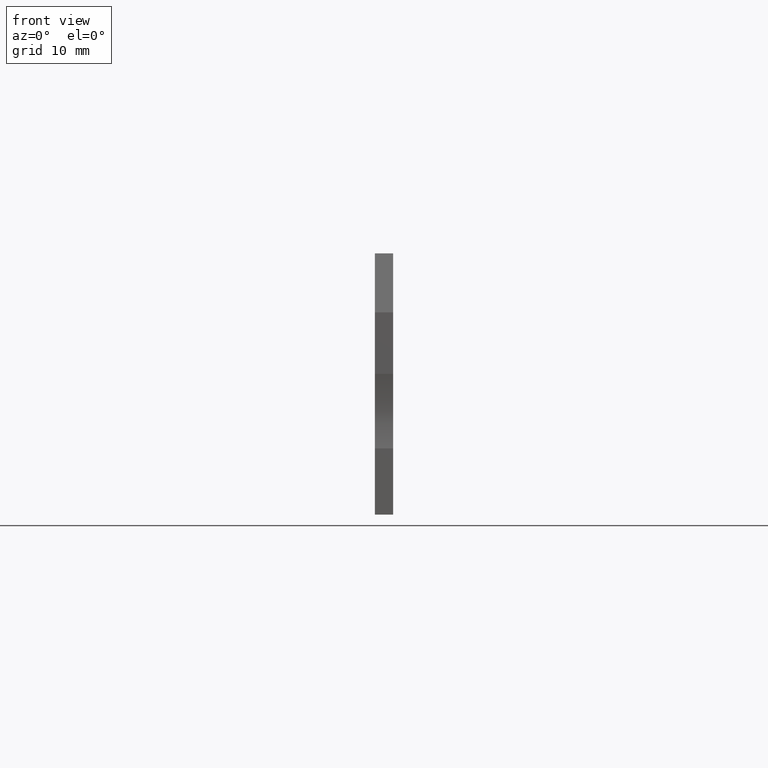
[diagram: clean part render]
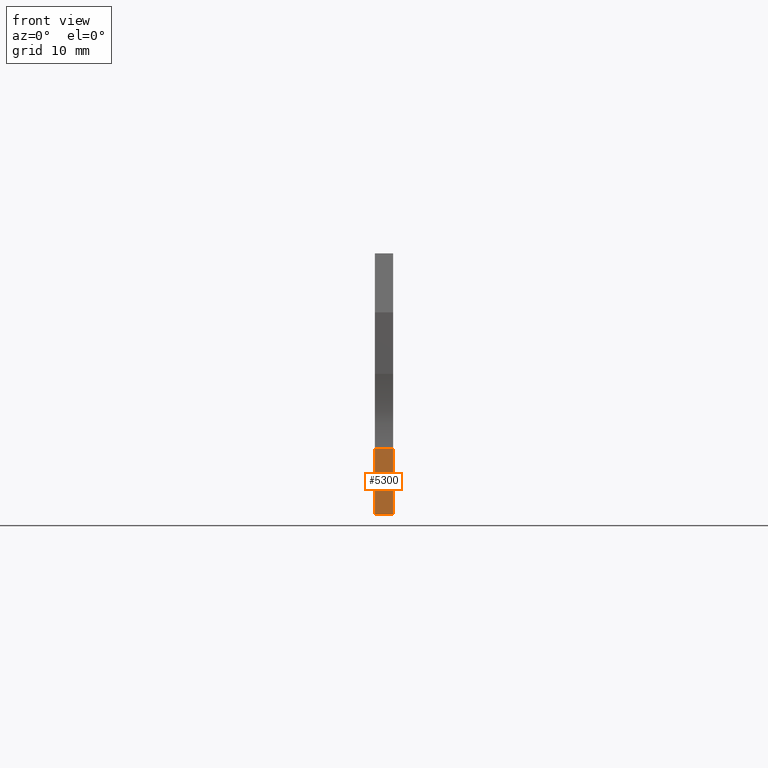
[diagram: same view with one face highlighted and labeled with its STEP entity id]
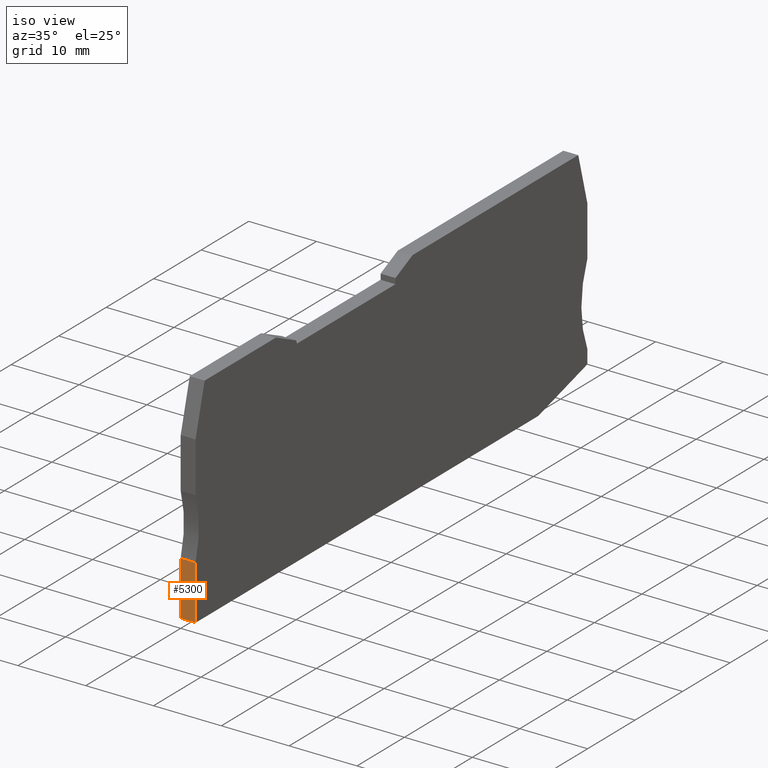
[diagram: same view with one face highlighted and labeled with its STEP entity id]
A machine part, front view. The second image highlights one B-rep face of the part: STEP entity #5300.
A second angle (iso view) of the same face is appended — the face is thin or edge-on in the first view.
In plain terms, the highlighted planar face has unit normal (0, -1, 0).
Its self-contained STEP definition (entity closure, byte-faithful):
#100=CARTESIAN_POINT('',(8.72968082603374,-38.2000000000045,
-2.22044604925031E-14));
#110=VERTEX_POINT('',#100);
#1340=CARTESIAN_POINT('',(8.72968082603374,-30.2000000000147,
-2.22044604925031E-14));
#1350=VERTEX_POINT('',#1340);
#1380=CARTESIAN_POINT('',(8.72968082603374,-33.886127,
-2.22044604925031E-14));
#1390=DIRECTION('',(0.,-1.,0.));
#1400=VECTOR('',#1390,1.);
#1410=LINE('',#1380,#1400);
#1420=EDGE_CURVE('',#1350,#110,#1410,.T.);
#1590=CARTESIAN_POINT('',(8.72968082603374,-33.886127,2.19999999999998))
;
#1600=DIRECTION('',(0.,-1.,0.));
#1610=VECTOR('',#1600,1.);
#1620=LINE('',#1590,#1610);
#1630=CARTESIAN_POINT('',(8.72968082603374,-30.2000000000147,
2.19999999999998));
#1640=VERTEX_POINT('',#1630);
#1650=CARTESIAN_POINT('',(8.72968082603374,-38.2000000000045,
2.19999999999998));
#1660=VERTEX_POINT('',#1650);
#1670=EDGE_CURVE('',#1640,#1660,#1620,.T.);
#5090=CARTESIAN_POINT('',(8.72968082603374,-30.4972542058063,
2.19999999999998));
#5100=DIRECTION('',(-1.,0.,0.));
#5110=DIRECTION('',(0.,1.,0.));
#5120=AXIS2_PLACEMENT_3D('',#5090,#5100,#5110);
#5130=PLANE('',#5120);
#5140=CARTESIAN_POINT('',(8.72968082603374,-38.2000000000045,
-2.1316282072803E-14));
#5150=DIRECTION('',(0.,0.,1.));
#5160=VECTOR('',#5150,1.);
#5170=LINE('',#5140,#5160);
#5180=EDGE_CURVE('',#110,#1660,#5170,.T.);
#5190=ORIENTED_EDGE('',*,*,#5180,.T.);
#5200=ORIENTED_EDGE('',*,*,#1420,.T.);
#5210=CARTESIAN_POINT('',(8.72968082603374,-30.2000000000147,
2.19999999999998));
#5220=DIRECTION('',(0.,0.,1.));
#5230=VECTOR('',#5220,1.);
#5240=LINE('',#5210,#5230);
#5250=EDGE_CURVE('',#1350,#1640,#5240,.T.);
#5260=ORIENTED_EDGE('',*,*,#5250,.F.);
#5270=ORIENTED_EDGE('',*,*,#1670,.F.);
#5280=EDGE_LOOP('',(#5270,#5260,#5200,#5190));
#5290=FACE_OUTER_BOUND('',#5280,.T.);
#5300=ADVANCED_FACE('',(#5290),#5130,.T.);